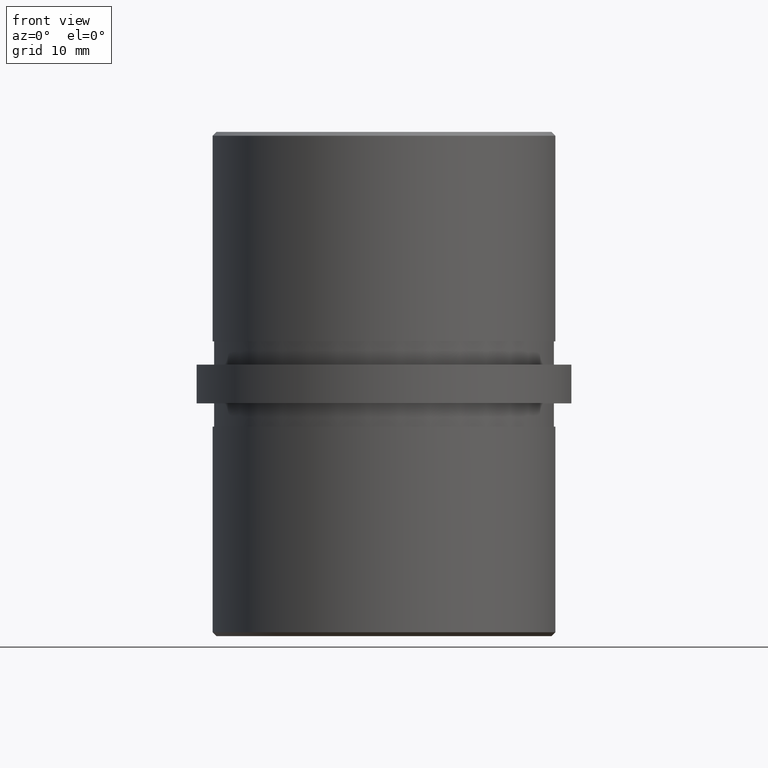
[diagram: clean part render]
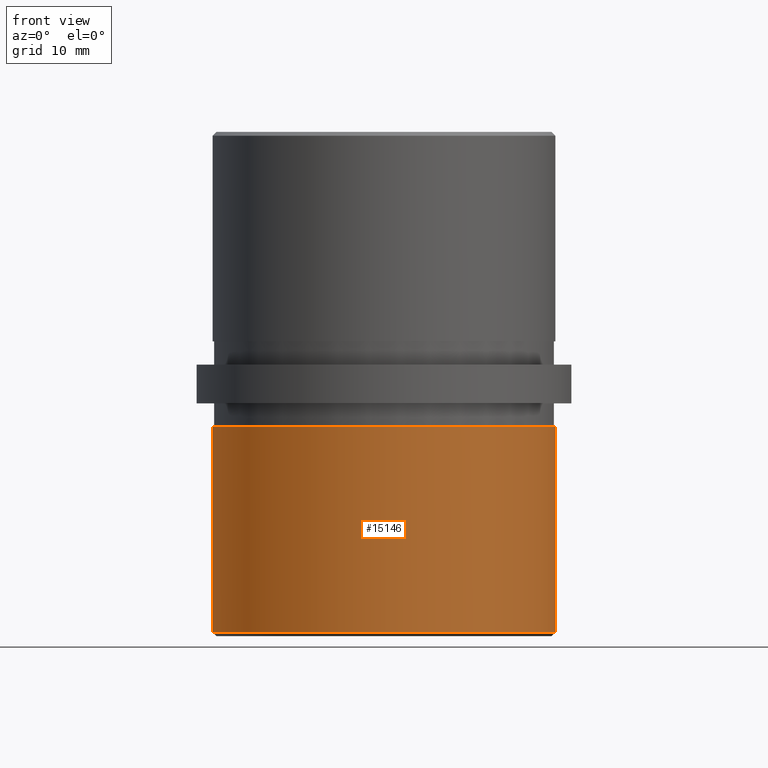
[diagram: same view with one face highlighted and labeled with its STEP entity id]
A machine part, front view. The second image highlights one B-rep face of the part: STEP entity #15146.
In plain terms, the highlighted cylindrical surface (partial cylindrical patch) has radius 22.1 mm, axis along (-0, -0, 1).
Its self-contained STEP definition (entity closure, byte-faithful):
#326 = EDGE_LOOP ( 'NONE', ( #10684, #20813, #7492, #17366 ) ) ;
#815 = AXIS2_PLACEMENT_3D ( 'NONE', #15687, #12444, #2696 ) ;
#1692 = EDGE_CURVE ( 'NONE', #3963, #15358, #6382, .T. ) ;
#1982 = DIRECTION ( 'NONE',  ( -0.0000000000000000000, -0.0000000000000000000, 1.000000000000000000 ) ) ;
#2360 = CARTESIAN_POINT ( 'NONE',  ( 0.0000000000000000000, 0.0000000000000000000, -5.500000000000000000 ) ) ;
#2696 = DIRECTION ( 'NONE',  ( -1.000000000000000000, 0.0000000000000000000, 0.0000000000000000000 ) ) ;
#2755 = CARTESIAN_POINT ( 'NONE',  ( -22.10000000000000100, 0.0000000000000000000, -5.500000000000000000 ) ) ;
#3615 = VECTOR ( 'NONE', #19752, 1000.000000000000000 ) ;
#3963 = VERTEX_POINT ( 'NONE', #2755 ) ;
#4642 = CARTESIAN_POINT ( 'NONE',  ( 22.10000000000000100, -2.706469426115651000E-015, -32.50000000000000000 ) ) ;
#6382 = CIRCLE ( 'NONE', #13391, 22.10000000000000100 ) ;
#6928 = CARTESIAN_POINT ( 'NONE',  ( -22.10000000000000100, 0.0000000000000000000, -32.00000000000000000 ) ) ;
#7492 = ORIENTED_EDGE ( 'NONE', *, *, #1692, .F. ) ;
#7887 = CARTESIAN_POINT ( 'NONE',  ( 22.10000000000000100, -2.706469426115651000E-015, -32.00000000000000000 ) ) ;
#8317 = CARTESIAN_POINT ( 'NONE',  ( 22.10000000000000100, -2.706469426115651000E-015, -5.500000000000000000 ) ) ;
#8395 = CYLINDRICAL_SURFACE ( 'NONE', #13165, 22.10000000000000100 ) ;
#8622 = VECTOR ( 'NONE', #19883, 1000.000000000000000 ) ;
#8776 = VERTEX_POINT ( 'NONE', #6928 ) ;
#8956 = EDGE_CURVE ( 'NONE', #8776, #16219, #17531, .T. ) ;
#9958 = LINE ( 'NONE', #4642, #3615 ) ;
#10684 = ORIENTED_EDGE ( 'NONE', *, *, #8956, .T. ) ;
#10790 = DIRECTION ( 'NONE',  ( 1.000000000000000000, 0.0000000000000000000, 0.0000000000000000000 ) ) ;
#11280 = LINE ( 'NONE', #11505, #8622 ) ;
#11505 = CARTESIAN_POINT ( 'NONE',  ( -22.10000000000000100, 0.0000000000000000000, -32.50000000000000000 ) ) ;
#12020 = DIRECTION ( 'NONE',  ( -1.000000000000000000, 0.0000000000000000000, 0.0000000000000000000 ) ) ;
#12444 = DIRECTION ( 'NONE',  ( -0.0000000000000000000, -0.0000000000000000000, 1.000000000000000000 ) ) ;
#12866 = FACE_OUTER_BOUND ( 'NONE', #326, .T. ) ;
#13165 = AXIS2_PLACEMENT_3D ( 'NONE', #16938, #1982, #12020 ) ;
#13391 = AXIS2_PLACEMENT_3D ( 'NONE', #2360, #15572, #10790 ) ;
#15146 = ADVANCED_FACE ( 'NONE', ( #12866 ), #8395, .T. ) ;
#15341 = EDGE_CURVE ( 'NONE', #8776, #3963, #11280, .T. ) ;
#15358 = VERTEX_POINT ( 'NONE', #8317 ) ;
#15572 = DIRECTION ( 'NONE',  ( -0.0000000000000000000, -0.0000000000000000000, 1.000000000000000000 ) ) ;
#15687 = CARTESIAN_POINT ( 'NONE',  ( 0.0000000000000000000, 0.0000000000000000000, -32.00000000000000000 ) ) ;
#16219 = VERTEX_POINT ( 'NONE', #7887 ) ;
#16221 = EDGE_CURVE ( 'NONE', #16219, #15358, #9958, .T. ) ;
#16938 = CARTESIAN_POINT ( 'NONE',  ( 0.0000000000000000000, 0.0000000000000000000, -32.50000000000000000 ) ) ;
#17366 = ORIENTED_EDGE ( 'NONE', *, *, #15341, .F. ) ;
#17531 = CIRCLE ( 'NONE', #815, 22.10000000000000100 ) ;
#19752 = DIRECTION ( 'NONE',  ( -0.0000000000000000000, -0.0000000000000000000, 1.000000000000000000 ) ) ;
#19883 = DIRECTION ( 'NONE',  ( -0.0000000000000000000, -0.0000000000000000000, 1.000000000000000000 ) ) ;
#20813 = ORIENTED_EDGE ( 'NONE', *, *, #16221, .T. ) ;